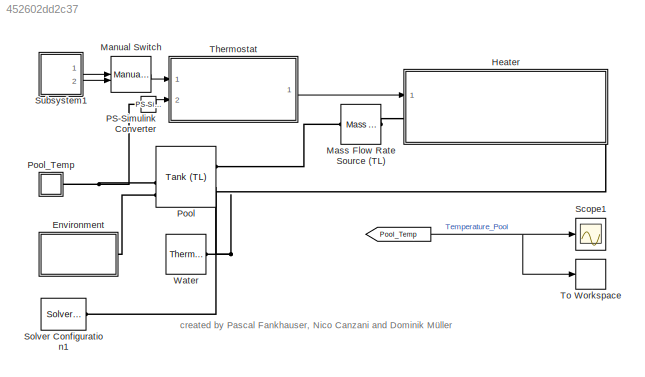
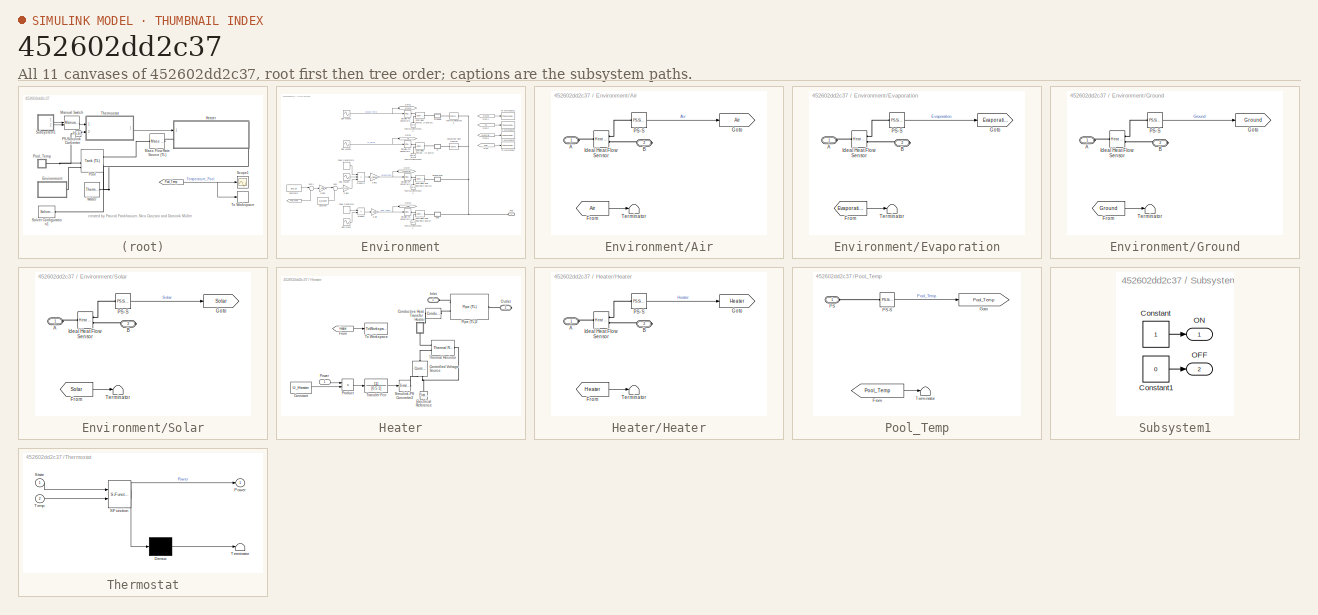
[diagram: thumbnail index - all 11 canvases of the model, root first then tree order]
MODEL slx_452602dd2c37
KIND model
CONFIG AbsTol = 1e-3
CONFIG EnableMultiTasking = on
CONFIG FixedStep = auto
CONFIG MaxStep = 100
CONFIG MinStep = auto
CONFIG RelTol = 1e-3
CONFIG SampleTimeConstraint = Unconstrained
CONFIG Solver = VariableStepAuto
CONFIG SolverName = VariableStepAuto
CONFIG StartTime = 0.0
CONFIG StopTime = 2592000
BLOCK [From]  
  GotoTag = Pool_Temp
  TagVisibility = global
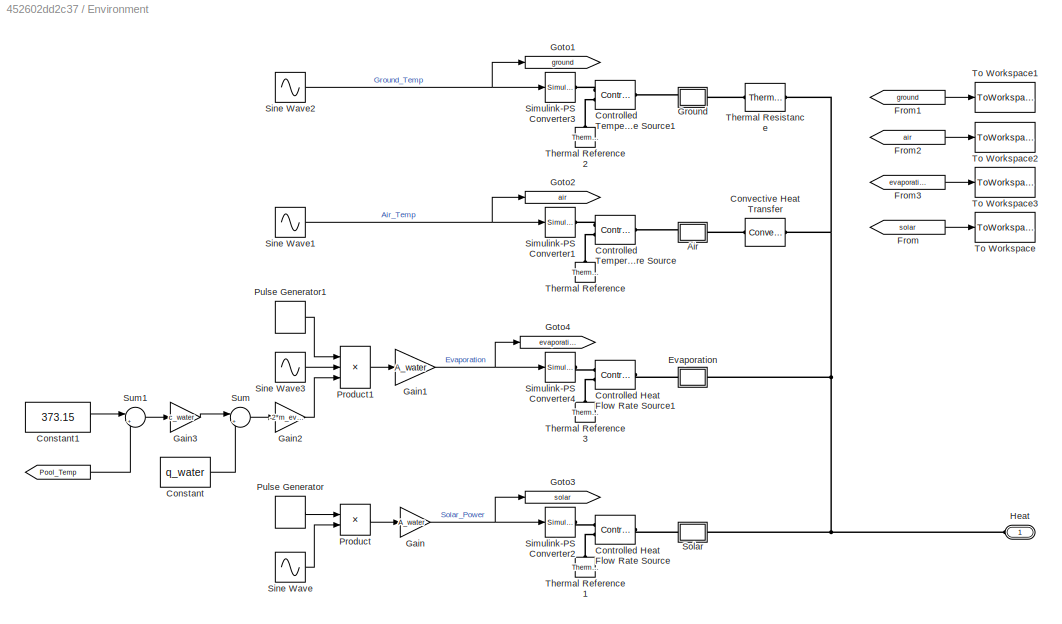
BLOCK [SubSystem] Environment
  Ports = [0, 0, 0, 0, 0, 1]
  RequestExecContextInheritance = off
BLOCK [From] Environment/ 
  GotoTag = Pool_Temp
  TagVisibility = global
BLOCK [SubSystem] Environment/Air
  AttributesFormatString = [J/s]
  CopyFcn = if strcmp(get_param(gcb, 'LinkStatus'),'implicit') == 0;\nset_param(gcb,'LinkStatus','inactive');                \nset_param(gcb,'LinkStatus','none');    \nend                \nset_param([gcb '/Goto'],'GotoTag', [get(gcbh,'name')]);\nset_param([gcb '/From'],'GotoTag', [get(gcbh,'name')]);\nh = get_param([gcb, '/PS-S'], 'PortHandles');\nset(h.Outport(1), 'SignalNameFromLabel', [get(gcbh,'name')])\nclear h;  <repeated x6 — deduplicated; at blocks: Air, Evaporation, Ground, Solar, Heater, Pool_Temp>
  Description = Simscape Probe
  InitFcn = unit=get_param([gcb '/PS-S'],'Unit');                                              \nset_param(gcb, 'AttributesFormatString', strcat('[', unit,']'));
  NameChangeFcn = set_param([gcb '/Goto'],'GotoTag', [get(gcbh,'name')]);\nset_param([gcb '/From'],'GotoTag', [get(gcbh,'name')]);\nh = get_param([gcb, '/PS-S'], 'PortHandles');\nset(h.Outport(1), 'SignalNameFromLabel', [get(gcbh,'name')])\nclear h;  <repeated x6 — deduplicated; at blocks: Air, Evaporation, Ground, Solar, Heater, Pool_Temp>
  OpenFcn = if exist('logsout', 'var')\n  vname = get(gcbh,'name');                 \n  fHandle = findall(0,'Tag',vname);                         \n  if isempty(fHandle)                                        \n  figure('Tag',vname);                                       \n  end;                                                       \n  figure(findobj('Tag',vname));                             \n  plot(logsout.getEl...<+213ch>  <repeated x5 — deduplicated; at blocks: Air, Evaporation, Ground, Solar, Heater>
  Ports = [0, 0, 0, 0, 0, 1, 1]
  RequestExecContextInheritance = off
BLOCK [PMIOPort] Environment/Air/A
  Side = Left
BLOCK [PMIOPort] Environment/Air/B
  Port = 2
  Side = Right
BLOCK [From] Environment/Air/From
  GotoTag = Air
  TagVisibility = global
BLOCK [Goto] Environment/Air/Goto
  GotoTag = Air
  TagVisibility = global
BLOCK [Reference] Environment/Air/Ideal Heat Flow Sensor  REF=fl_lib/Thermal/Thermal Sensors/Heat Flow Rate
Sensor
  Ports = [0, 0, 0, 0, 0, 1, 2]
  SourceBlock = fl_lib/Thermal/Thermal Sensors/Heat Flow Rate\nSensor
  SourceProductBaseCode = SS
  SourceProductName = Simscape
  SourceType = Heat Flow Rate\nSensor
BLOCK [Reference] Environment/Air/PS-S  REF=nesl_utility/PS-Simulink
Converter
  Ports = [0, 1, 0, 0, 0, 1]
  SourceBlock = nesl_utility/PS-Simulink\nConverter
  SourceProductBaseCode = SS
  SourceProductName = Simscape
  SourceType = PS-Simulink\nConverter
BLOCK [Terminator] Environment/Air/Terminator
BLOCK [Constant] Environment/Constant
  Value = q_water
BLOCK [Constant] Environment/Constant1
  Value = 373.15
BLOCK [Reference] Environment/Controlled Heat Flow Rate Source  REF=fl_lib/Thermal/Thermal Sources/Controlled Heat Flow
Rate Source
  Ports = [0, 0, 0, 0, 0, 1, 2]
  SourceBlock = fl_lib/Thermal/Thermal Sources/Controlled Heat Flow\nRate Source
  SourceProductBaseCode = SS
  SourceProductName = Simscape
  SourceType = Controlled Heat Flow\nRate Source
BLOCK [Reference] Environment/Controlled Heat Flow Rate Source1  REF=fl_lib/Thermal/Thermal Sources/Controlled Heat Flow
Rate Source
  Ports = [0, 0, 0, 0, 0, 1, 2]
  SourceBlock = fl_lib/Thermal/Thermal Sources/Controlled Heat Flow\nRate Source
  SourceProductBaseCode = SS
  SourceProductName = Simscape
  SourceType = Controlled Heat Flow\nRate Source
BLOCK [Reference] Environment/Controlled Temperature Source  REF=fl_lib/Thermal/Thermal Sources/Controlled
Temperature Source
  Ports = [0, 0, 0, 0, 0, 1, 2]
  SourceBlock = fl_lib/Thermal/Thermal Sources/Controlled\nTemperature Source
  SourceProductBaseCode = SS
  SourceProductName = Simscape
  SourceType = Controlled\nTemperature Source
BLOCK [Reference] Environment/Controlled Temperature Source1  REF=fl_lib/Thermal/Thermal Sources/Controlled
Temperature Source
  Ports = [0, 0, 0, 0, 0, 1, 2]
  SourceBlock = fl_lib/Thermal/Thermal Sources/Controlled\nTemperature Source
  SourceProductBaseCode = SS
  SourceProductName = Simscape
  SourceType = Controlled\nTemperature Source
BLOCK [Reference] Environment/Convective Heat Transfer  REF=fl_lib/Thermal/Thermal Elements/Convective Heat
Transfer
  Ports = [0, 0, 0, 0, 0, 1, 1]
  SourceBlock = fl_lib/Thermal/Thermal Elements/Convective Heat\nTransfer
  SourceProductBaseCode = SS
  SourceProductName = Simscape
  SourceType = Convective Heat\nTransfer
BLOCK [SubSystem] Environment/Evaporation
  AttributesFormatString = [J/s]
  Description = Simscape Probe
  InitFcn = unit=get_param([gcb '/PS-S'],'Unit');                                              \nset_param(gcb, 'AttributesFormatString', strcat('[', unit,']'));
  Ports = [0, 0, 0, 0, 0, 1, 1]
  RequestExecContextInheritance = off
BLOCK [PMIOPort] Environment/Evaporation/A
  Side = Left
BLOCK [PMIOPort] Environment/Evaporation/B
  Port = 2
  Side = Right
BLOCK [From] Environment/Evaporation/From
  GotoTag = Evaporation
  TagVisibility = global
BLOCK [Goto] Environment/Evaporation/Goto
  GotoTag = Evaporation
  TagVisibility = global
BLOCK [Reference] Environment/Evaporation/Ideal Heat Flow Sensor  REF=fl_lib/Thermal/Thermal Sensors/Heat Flow Rate
Sensor
  Ports = [0, 0, 0, 0, 0, 1, 2]
  SourceBlock = fl_lib/Thermal/Thermal Sensors/Heat Flow Rate\nSensor
  SourceProductBaseCode = SS
  SourceProductName = Simscape
  SourceType = Heat Flow Rate\nSensor
BLOCK [Reference] Environment/Evaporation/PS-S  REF=nesl_utility/PS-Simulink
Converter
  Ports = [0, 1, 0, 0, 0, 1]
  SourceBlock = nesl_utility/PS-Simulink\nConverter
  SourceProductBaseCode = SS
  SourceProductName = Simscape
  SourceType = PS-Simulink\nConverter
BLOCK [Terminator] Environment/Evaporation/Terminator
BLOCK [From] Environment/From
  GotoTag = solar
  TagVisibility = global
BLOCK [From] Environment/From1
  GotoTag = ground
  TagVisibility = global
BLOCK [From] Environment/From2
  GotoTag = air
  TagVisibility = global
BLOCK [From] Environment/From3
  GotoTag = evaporation
  TagVisibility = global
BLOCK [Gain] Environment/Gain
  Gain = A_water
  OutDataTypeStr = Inherit: Inherit via internal rule
  ParamDataTypeStr = Inherit: Inherit via internal rule
  SaturateOnIntegerOverflow = off
BLOCK [Gain] Environment/Gain1
  Gain = A_water
  OutDataTypeStr = Inherit: Inherit via internal rule
  ParamDataTypeStr = Inherit: Inherit via internal rule
  SaturateOnIntegerOverflow = off
BLOCK [Gain] Environment/Gain2
  Gain = -2*m_ev/(24*3600)
  OutDataTypeStr = Inherit: Inherit via internal rule
  ParamDataTypeStr = Inherit: Inherit via internal rule
  SaturateOnIntegerOverflow = off
BLOCK [Gain] Environment/Gain3
  Gain = c_water
  OutDataTypeStr = Inherit: Inherit via internal rule
  ParamDataTypeStr = Inherit: Inherit via internal rule
  SaturateOnIntegerOverflow = off
BLOCK [Goto] Environment/Goto1
  GotoTag = ground
  TagVisibility = global
BLOCK [Goto] Environment/Goto2
  GotoTag = air
  TagVisibility = global
BLOCK [Goto] Environment/Goto3
  GotoTag = solar
  TagVisibility = global
BLOCK [Goto] Environment/Goto4
  GotoTag = evaporation
  TagVisibility = global
BLOCK [SubSystem] Environment/Ground
  AttributesFormatString = [J/s]
  Description = Simscape Probe
  InitFcn = unit=get_param([gcb '/PS-S'],'Unit');                                              \nset_param(gcb, 'AttributesFormatString', strcat('[', unit,']'));
  Ports = [0, 0, 0, 0, 0, 1, 1]
  RequestExecContextInheritance = off
BLOCK [PMIOPort] Environment/Ground/A
  Side = Left
BLOCK [PMIOPort] Environment/Ground/B
  Port = 2
  Side = Right
BLOCK [From] Environment/Ground/From
  GotoTag = Ground
  TagVisibility = global
BLOCK [Goto] Environment/Ground/Goto
  GotoTag = Ground
  TagVisibility = global
BLOCK [Reference] Environment/Ground/Ideal Heat Flow Sensor  REF=fl_lib/Thermal/Thermal Sensors/Heat Flow Rate
Sensor
  Ports = [0, 0, 0, 0, 0, 1, 2]
  SourceBlock = fl_lib/Thermal/Thermal Sensors/Heat Flow Rate\nSensor
  SourceProductBaseCode = SS
  SourceProductName = Simscape
  SourceType = Heat Flow Rate\nSensor
BLOCK [Reference] Environment/Ground/PS-S  REF=nesl_utility/PS-Simulink
Converter
  Ports = [0, 1, 0, 0, 0, 1]
  SourceBlock = nesl_utility/PS-Simulink\nConverter
  SourceProductBaseCode = SS
  SourceProductName = Simscape
  SourceType = PS-Simulink\nConverter
BLOCK [Terminator] Environment/Ground/Terminator
BLOCK [PMIOPort] Environment/Heat
  Side = Left
BLOCK [Product] Environment/Product
  InputSameDT = off
  OutDataTypeStr = Inherit: Inherit via internal rule
  Ports = [2, 1]
  RndMeth = Floor
  SaturateOnIntegerOverflow = off
BLOCK [Product] Environment/Product1
  InputSameDT = off
  Inputs = 3
  OutDataTypeStr = Inherit: Inherit via internal rule
  Ports = [3, 1]
  RndMeth = Floor
  SaturateOnIntegerOverflow = off
BLOCK [DiscretePulseGenerator] Environment/Pulse Generator
  Period = 24*3600
  Ports = [0, 1]
  PulseType = Time based
  PulseWidth = 50
BLOCK [DiscretePulseGenerator] Environment/Pulse Generator1
  Period = 60*60*24
  Ports = [0, 1]
  PulseType = Time based
  PulseWidth = 50
BLOCK [Reference] Environment/Simulink-PS Converter1  REF=nesl_utility/Simulink-PS
Converter
  Ports = [1, 0, 0, 0, 0, 0, 1]
  SourceBlock = nesl_utility/Simulink-PS\nConverter
  SourceProductBaseCode = SS
  SourceProductName = Simscape
  SourceType = Simulink-PS\nConverter
BLOCK [Reference] Environment/Simulink-PS Converter2  REF=nesl_utility/Simulink-PS
Converter
  Ports = [1, 0, 0, 0, 0, 0, 1]
  SourceBlock = nesl_utility/Simulink-PS\nConverter
  SourceProductBaseCode = SS
  SourceProductName = Simscape
  SourceType = Simulink-PS\nConverter
BLOCK [Reference] Environment/Simulink-PS Converter3  REF=nesl_utility/Simulink-PS
Converter
  Ports = [1, 0, 0, 0, 0, 0, 1]
  SourceBlock = nesl_utility/Simulink-PS\nConverter
  SourceProductBaseCode = SS
  SourceProductName = Simscape
  SourceType = Simulink-PS\nConverter
BLOCK [Reference] Environment/Simulink-PS Converter4  REF=nesl_utility/Simulink-PS
Converter
  Ports = [1, 0, 0, 0, 0, 0, 1]
  SourceBlock = nesl_utility/Simulink-PS\nConverter
  SourceProductBaseCode = SS
  SourceProductName = Simscape
  SourceType = Simulink-PS\nConverter
BLOCK [Sin] Environment/Sine Wave
  Amplitude = P_Smax/2
  Bias = P_Smax/2
  Frequency = 2*pi/(12*3600)
  Phase = -pi/2
  Ports = [0, 1]
  SampleTime = 0
BLOCK [Sin] Environment/Sine Wave1
  Amplitude = (T_Amax - T_Amin)/2
  Bias = (T_Amax + T_Amin)/2
  Frequency = 2*pi/(24*3600)
  Phase = -pi/2
  Ports = [0, 1]
  SampleTime = 0
BLOCK [Sin] Environment/Sine Wave2
  Amplitude = (T_Gmax - T_Gmin)/2
  Bias = (T_Gmax + T_Gmin)/2
  Frequency = 2*pi/(24*3600)
  Phase = -pi/2 - P_air_ground
  Ports = [0, 1]
  SampleTime = 0
BLOCK [Sin] Environment/Sine Wave3
  Bias = 1
  Frequency = 2*pi/(60*60*12)
  Phase = -pi/2
  Ports = [0, 1]
  SampleTime = 0
BLOCK [SubSystem] Environment/Solar
  AttributesFormatString = [J/s]
  Description = Simscape Probe
  InitFcn = unit=get_param([gcb '/PS-S'],'Unit');                                              \nset_param(gcb, 'AttributesFormatString', strcat('[', unit,']'));
  Ports = [0, 0, 0, 0, 0, 1, 1]
  RequestExecContextInheritance = off
BLOCK [PMIOPort] Environment/Solar/A
  Side = Left
BLOCK [PMIOPort] Environment/Solar/B
  Port = 2
  Side = Right
BLOCK [From] Environment/Solar/From
  GotoTag = Solar
  TagVisibility = global
BLOCK [Goto] Environment/Solar/Goto
  GotoTag = Solar
  TagVisibility = global
BLOCK [Reference] Environment/Solar/Ideal Heat Flow Sensor  REF=fl_lib/Thermal/Thermal Sensors/Heat Flow Rate
Sensor
  Ports = [0, 0, 0, 0, 0, 1, 2]
  SourceBlock = fl_lib/Thermal/Thermal Sensors/Heat Flow Rate\nSensor
  SourceProductBaseCode = SS
  SourceProductName = Simscape
  SourceType = Heat Flow Rate\nSensor
BLOCK [Reference] Environment/Solar/PS-S  REF=nesl_utility/PS-Simulink
Converter
  Ports = [0, 1, 0, 0, 0, 1]
  SourceBlock = nesl_utility/PS-Simulink\nConverter
  SourceProductBaseCode = SS
  SourceProductName = Simscape
  SourceType = PS-Simulink\nConverter
BLOCK [Terminator] Environment/Solar/Terminator
BLOCK [Sum] Environment/Sum
  IconShape = round
  InputSameDT = off
  Inputs = |++
  OutDataTypeStr = Inherit: Inherit via internal rule
  Ports = [2, 1]
  SaturateOnIntegerOverflow = off
BLOCK [Sum] Environment/Sum1
  IconShape = round
  InputSameDT = off
  Inputs = |+-
  OutDataTypeStr = Inherit: Inherit via internal rule
  Ports = [2, 1]
  SaturateOnIntegerOverflow = off
BLOCK [Reference] Environment/Thermal Reference  REF=fl_lib/Thermal/Thermal Elements/Thermal Reference
  Ports = [0, 0, 0, 0, 0, 1]
  SourceBlock = fl_lib/Thermal/Thermal Elements/Thermal Reference
  SourceProductBaseCode = SS
  SourceProductName = Simscape
  SourceType = Thermal Reference
BLOCK [Reference] Environment/Thermal Reference1  REF=fl_lib/Thermal/Thermal Elements/Thermal Reference
  Ports = [0, 0, 0, 0, 0, 1]
  SourceBlock = fl_lib/Thermal/Thermal Elements/Thermal Reference
  SourceProductBaseCode = SS
  SourceProductName = Simscape
  SourceType = Thermal Reference
BLOCK [Reference] Environment/Thermal Reference2  REF=fl_lib/Thermal/Thermal Elements/Thermal Reference
  Ports = [0, 0, 0, 0, 0, 1]
  SourceBlock = fl_lib/Thermal/Thermal Elements/Thermal Reference
  SourceProductBaseCode = SS
  SourceProductName = Simscape
  SourceType = Thermal Reference
BLOCK [Reference] Environment/Thermal Reference3  REF=fl_lib/Thermal/Thermal Elements/Thermal Reference
  Ports = [0, 0, 0, 0, 0, 1]
  SourceBlock = fl_lib/Thermal/Thermal Elements/Thermal Reference
  SourceProductBaseCode = SS
  SourceProductName = Simscape
  SourceType = Thermal Reference
BLOCK [Reference] Environment/Thermal Resistance  REF=fl_lib/Thermal/Thermal Elements/Thermal Resistance
  Ports = [0, 0, 0, 0, 0, 1, 1]
  SourceBlock = fl_lib/Thermal/Thermal Elements/Thermal Resistance
  SourceProductBaseCode = SS
  SourceProductName = Simscape
  SourceType = Thermal Resistance
BLOCK [ToWorkspace] Environment/To Workspace
  FixptAsFi = on
  MaxDataPoints = inf
  Ports = [1]
  SampleTime = -1
  Save2DSignal = 3-D array (concatenate along third dimension)
  SaveFormat = Timeseries
  VariableName = solar
BLOCK [ToWorkspace] Environment/To Workspace1
  FixptAsFi = on
  MaxDataPoints = inf
  Ports = [1]
  SampleTime = -1
  Save2DSignal = 3-D array (concatenate along third dimension)
  SaveFormat = Timeseries
  VariableName = gnd
BLOCK [ToWorkspace] Environment/To Workspace2
  FixptAsFi = on
  MaxDataPoints = inf
  Ports = [1]
  SampleTime = -1
  Save2DSignal = 3-D array (concatenate along third dimension)
  SaveFormat = Timeseries
  VariableName = air
BLOCK [ToWorkspace] Environment/To Workspace3
  FixptAsFi = on
  MaxDataPoints = inf
  Ports = [1]
  SampleTime = -1
  Save2DSignal = 3-D array (concatenate along third dimension)
  SaveFormat = Timeseries
  VariableName = evap
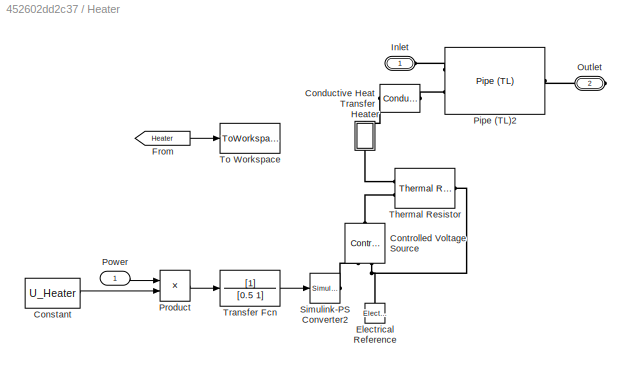
BLOCK [SubSystem] Heater
  Ports = [1, 0, 0, 0, 0, 1, 1]
  RequestExecContextInheritance = off
BLOCK [Reference] Heater/Conductive Heat Transfer  REF=fl_lib/Thermal/Thermal Elements/Conductive Heat
Transfer
  Ports = [0, 0, 0, 0, 0, 1, 1]
  SourceBlock = fl_lib/Thermal/Thermal Elements/Conductive Heat\nTransfer
  SourceProductBaseCode = SS
  SourceProductName = Simscape
  SourceType = Conductive Heat\nTransfer
BLOCK [Constant] Heater/Constant
  Value = U_Heater
BLOCK [Reference] Heater/Controlled Voltage Source  REF=fl_lib/Electrical/Electrical Sources/Controlled Voltage
Source
  Ports = [0, 0, 0, 0, 0, 1, 2]
  SourceBlock = fl_lib/Electrical/Electrical Sources/Controlled Voltage\nSource
  SourceProductBaseCode = SS
  SourceProductName = Simscape
  SourceType = Controlled Voltage\nSource
BLOCK [Reference] Heater/Electrical Reference  REF=fl_lib/Electrical/Electrical Elements/Electrical Reference
  Ports = [0, 0, 0, 0, 0, 1]
  SourceBlock = fl_lib/Electrical/Electrical Elements/Electrical Reference
  SourceProductBaseCode = SS
  SourceProductName = Simscape
  SourceType = Electrical Reference
BLOCK [From] Heater/From
  GotoTag = Heater
  TagVisibility = global
BLOCK [SubSystem] Heater/Heater
  AttributesFormatString = [J/s]
  Description = Simscape Probe
  InitFcn = unit=get_param([gcb '/PS-S'],'Unit');                                              \nset_param(gcb, 'AttributesFormatString', strcat('[', unit,']'));
  Ports = [0, 0, 0, 0, 0, 1, 1]
  RequestExecContextInheritance = off
BLOCK [PMIOPort] Heater/Heater/A
  Side = Left
BLOCK [PMIOPort] Heater/Heater/B
  Port = 2
  Side = Right
BLOCK [From] Heater/Heater/From
  GotoTag = Heater
  TagVisibility = global
BLOCK [Goto] Heater/Heater/Goto
  GotoTag = Heater
  TagVisibility = global
BLOCK [Reference] Heater/Heater/Ideal Heat Flow Sensor  REF=fl_lib/Thermal/Thermal Sensors/Heat Flow Rate
Sensor
  Ports = [0, 0, 0, 0, 0, 1, 2]
  SourceBlock = fl_lib/Thermal/Thermal Sensors/Heat Flow Rate\nSensor
  SourceProductBaseCode = SS
  SourceProductName = Simscape
  SourceType = Heat Flow Rate\nSensor
BLOCK [Reference] Heater/Heater/PS-S  REF=nesl_utility/PS-Simulink
Converter
  Ports = [0, 1, 0, 0, 0, 1]
  SourceBlock = nesl_utility/PS-Simulink\nConverter
  SourceProductBaseCode = SS
  SourceProductName = Simscape
  SourceType = PS-Simulink\nConverter
BLOCK [Terminator] Heater/Heater/Terminator
BLOCK [PMIOPort] Heater/Inlet
  Side = Left
BLOCK [PMIOPort] Heater/Outlet
  Port = 2
  Side = Right
BLOCK [Reference] Heater/Pipe (TL)2  REF=fl_lib/Thermal Liquid/Elements/Pipe (TL)
  Ports = [0, 0, 0, 0, 0, 2, 1]
  SourceBlock = fl_lib/Thermal Liquid/Elements/Pipe (TL)
  SourceProductBaseCode = SS
  SourceProductName = Simscape
  SourceType = Pipe (TL)
BLOCK [Inport] Heater/Power
  IconDisplay = Port number
BLOCK [Product] Heater/Product
  InputSameDT = off
  OutDataTypeStr = Inherit: Inherit via internal rule
  Ports = [2, 1]
  RndMeth = Floor
  SaturateOnIntegerOverflow = off
BLOCK [Reference] Heater/Simulink-PS Converter2  REF=nesl_utility/Simulink-PS
Converter
  Ports = [1, 0, 0, 0, 0, 0, 1]
  SourceBlock = nesl_utility/Simulink-PS\nConverter
  SourceProductBaseCode = SS
  SourceProductName = Simscape
  SourceType = Simulink-PS\nConverter
BLOCK [Reference] Heater/Thermal Resistor  REF=fl_lib/Electrical/Electrical Elements/Thermal Resistor
  Ports = [0, 0, 0, 0, 0, 2, 1]
  SourceBlock = fl_lib/Electrical/Electrical Elements/Thermal Resistor
  SourceProductBaseCode = SS
  SourceProductName = Simscape
  SourceType = Thermal Resistor
BLOCK [ToWorkspace] Heater/To Workspace
  FixptAsFi = on
  MaxDataPoints = inf
  Ports = [1]
  SampleTime = -1
  Save2DSignal = 3-D array (concatenate along third dimension)
  SaveFormat = Timeseries
  VariableName = heater
BLOCK [TransferFcn] Heater/Transfer Fcn
  Denominator = [0.5 1]
BLOCK [ManualSwitch] Manual Switch
BLOCK [Reference] Mass Flow Rate Source (TL)  REF=fl_lib/Thermal Liquid/Sources/Mass Flow Rate
Source (TL)
  Ports = [0, 0, 0, 0, 0, 1, 1]
  SourceBlock = fl_lib/Thermal Liquid/Sources/Mass Flow Rate\nSource (TL)
  SourceProductBaseCode = SS
  SourceProductName = Simscape
  SourceType = Mass Flow Rate\nSource (TL)
BLOCK [Reference] PS-Simulink Converter  REF=nesl_utility/PS-Simulink
Converter
  Ports = [0, 1, 0, 0, 0, 1]
  SourceBlock = nesl_utility/PS-Simulink\nConverter
  SourceProductBaseCode = SS
  SourceProductName = Simscape
  SourceType = PS-Simulink\nConverter
BLOCK [Reference] Pool  REF=SimscapeFluids_lib/Thermal Liquid/Tanks & Accumulators/Tank (TL)
  Ports = [0, 0, 0, 0, 0, 2, 4]
  SourceBlock = SimscapeFluids_lib/Thermal Liquid/Tanks & Accumulators/Tank (TL)
  SourceProductBaseCode = SH
  SourceProductName = Simscape Fluids
  SourceType = Tank (TL)
BLOCK [SubSystem] Pool_Temp
  AttributesFormatString = [1]
  Description = Simscape Probe
  InitFcn = unit=get_param([gcb '/PS-S'],'Unit');                                              \nset_param(gcb, 'AttributesFormatString', strcat('[', unit,']'));
  OpenFcn = if exist('logsout', 'var')\n  vname = get(gcbh,'name');                 \n  fHandle = findall(0,'Tag',vname);                         \n  if isempty(fHandle)                                        \n  figure('Tag',vname);                                       \n  end;                                                       \n  figure(findobj('Tag',vname));                             \n  plot(logsout.getEl...<+219ch>
  Ports = [0, 0, 0, 0, 0, 1]
  RequestExecContextInheritance = off
BLOCK [From] Pool_Temp/From
  GotoTag = Pool_Temp
  TagVisibility = global
BLOCK [Goto] Pool_Temp/Goto
  GotoTag = Pool_Temp
  TagVisibility = global
BLOCK [PMIOPort] Pool_Temp/PS
  Side = Left
BLOCK [Reference] Pool_Temp/PS-S  REF=nesl_utility/PS-Simulink
Converter
  Ports = [0, 1, 0, 0, 0, 1]
  SourceBlock = nesl_utility/PS-Simulink\nConverter
  SourceProductBaseCode = SS
  SourceProductName = Simscape
  SourceType = PS-Simulink\nConverter
BLOCK [Terminator] Pool_Temp/Terminator
BLOCK [Scope] Scope1
  Floating = off
  NumInputPorts = 1
  Ports = [1]
  ScopeSpecificationString = Simulink.scopes.TimeScopeBlockCfg('CurrentConfiguration', extmgr.ConfigurationSet(extmgr.Configuration('Core','General UI',true,'FigureColor',[1 1 1]),extmgr.Configuration('Core','Source UI',true),extmgr.Configuration('Sources','WiredSimulink',true,'DataLoggingLimitDataPoints',true,'DataLoggingSaveFormat','Array','DataLoggingDecimation','1','DataLoggingDecimateData',true,'DataLoggingVariableName',...<+2206ch>
BLOCK [Reference] Solver Configuration1  REF=nesl_utility/Solver
Configuration
  Ports = [0, 0, 0, 0, 0, 0, 1]
  SourceBlock = nesl_utility/Solver\nConfiguration
  SourceProductBaseCode = SS
  SourceProductName = Simscape
  SourceType = Solver\nConfiguration
BLOCK [SubSystem] Subsystem1
  Ports = [0, 2]
  RequestExecContextInheritance = off
BLOCK [Constant] Subsystem1/Constant
BLOCK [Constant] Subsystem1/Constant1
  Value = 0
BLOCK [Outport] Subsystem1/OFF
  IconDisplay = Port number
  Port = 2
BLOCK [Outport] Subsystem1/ON
  IconDisplay = Port number
BLOCK [SubSystem] Thermostat
  ErrorFcn = Stateflow.Translate.translate
  PermitHierarchicalResolution = ExplicitOnly
  Ports = [2, 1]
  RequestExecContextInheritance = off
  SFBlockType = MATLAB Function
  TreatAsAtomicUnit = on
BLOCK [Demux] Thermostat/ Demux 
  Outputs = 1
  Ports = [1, 1]
BLOCK [S-Function] Thermostat/ SFunction 
  EnableBusSupport = on
  FunctionName = sf_sfun
  Parameters = max_temp,min_temp
  PortCounts = [2 2]
  Ports = [2, 2]
  SFcnIsStateOwnerBlock = off
  SFunctionDeploymentMode = off
  Tag = Stateflow S-Function SwimmingPoolSimulationModel 2
BLOCK [Terminator] Thermostat/ Terminator 
BLOCK [Outport] Thermostat/Power
  IconDisplay = Port number
BLOCK [Inport] Thermostat/State
  IconDisplay = Port number
BLOCK [Inport] Thermostat/Temp
  IconDisplay = Port number
  Port = 2
BLOCK [ToWorkspace] To Workspace
  FixptAsFi = on
  MaxDataPoints = inf
  Ports = [1]
  SampleTime = -1
  Save2DSignal = 3-D array (concatenate along third dimension)
  SaveFormat = Timeseries
  VariableName = sim
BLOCK [Reference] Water  REF=SimscapeFluids_lib/Thermal Liquid/Utilities/Thermal Liquid
Properties (TL)
  Ports = [0, 0, 0, 0, 0, 0, 1]
  SourceBlock = SimscapeFluids_lib/Thermal Liquid/Utilities/Thermal Liquid\nProperties (TL)
  SourceProductBaseCode = SH
  SourceProductName = Simscape Fluids
  SourceType = Thermal Liquid\nProperties (TL)
ANNOTATION (root): created by Pascal Fankhauser, Nico Canzani and Dominik Müller
NET  :1 -> Scope1:1, To Workspace:1
LINE Environment/ :1 -> Environment/Sum1:2
LINE Environment/Constant1:1 -> Environment/Sum1:1
LINE Environment/Constant:1 -> Environment/Sum:2
LINE Environment/From1:1 -> Environment/To Workspace1:1
LINE Environment/From2:1 -> Environment/To Workspace2:1
LINE Environment/From3:1 -> Environment/To Workspace3:1
LINE Environment/From:1 -> Environment/To Workspace:1
NET Environment/Gain1:1 -> Environment/Goto4:1, Environment/Simulink-PS Converter4:1
LINE Environment/Gain2:1 -> Environment/Product1:3
LINE Environment/Gain3:1 -> Environment/Sum:1
NET Environment/Gain:1 -> Environment/Goto3:1, Environment/Simulink-PS Converter2:1
LINE Environment/Product1:1 -> Environment/Gain1:1
LINE Environment/Product:1 -> Environment/Gain:1
LINE Environment/Pulse Generator1:1 -> Environment/Product1:1
LINE Environment/Pulse Generator:1 -> Environment/Product:1
NET Environment/Sine Wave1:1 -> Environment/Goto2:1, Environment/Simulink-PS Converter1:1
NET Environment/Sine Wave2:1 -> Environment/Goto1:1, Environment/Simulink-PS Converter3:1
LINE Environment/Sine Wave3:1 -> Environment/Product1:2
LINE Environment/Sine Wave:1 -> Environment/Product:2
LINE Environment/Sum1:1 -> Environment/Gain3:1
LINE Environment/Sum:1 -> Environment/Gain2:1
LINE Heater/Constant:1 -> Heater/Product:2
LINE Heater/From:1 -> Heater/To Workspace:1
LINE Heater/Power:1 -> Heater/Product:1
LINE Heater/Product:1 -> Heater/Transfer Fcn:1
LINE Heater/Transfer Fcn:1 -> Heater/Simulink-PS Converter2:1
LINE Manual Switch:1 -> Thermostat:1
LINE PS-Simulink Converter:1 -> Thermostat:2
LINE Subsystem1/Constant1:1 -> Subsystem1/OFF:1
LINE Subsystem1/Constant:1 -> Subsystem1/ON:1
LINE Subsystem1:1 -> Manual Switch:1
LINE Subsystem1:2 -> Manual Switch:2
LINE Thermostat:1 -> Heater:1
PLINE Environment/Air:LConn1 -- Environment/Controlled Temperature Source:LConn1
PLINE Environment/Air:RConn1 -- Environment/Convective Heat Transfer:RConn1
PLINE Environment/Controlled Heat Flow Rate Source1:LConn1 -- Environment/Evaporation:LConn1
PLINE Environment/Controlled Heat Flow Rate Source1:RConn1 -- Environment/Simulink-PS Converter4:RConn1
PLINE Environment/Controlled Heat Flow Rate Source1:RConn2 -- Environment/Thermal Reference3:LConn1
PLINE Environment/Controlled Heat Flow Rate Source:LConn1 -- Environment/Solar:LConn1
PLINE Environment/Controlled Heat Flow Rate Source:RConn1 -- Environment/Simulink-PS Converter2:RConn1
PLINE Environment/Controlled Heat Flow Rate Source:RConn2 -- Environment/Thermal Reference1:LConn1
PLINE Environment/Controlled Temperature Source1:LConn1 -- Environment/Ground:LConn1
PLINE Environment/Controlled Temperature Source1:RConn1 -- Environment/Simulink-PS Converter3:RConn1
PLINE Environment/Controlled Temperature Source1:RConn2 -- Environment/Thermal Reference2:LConn1
PLINE Environment/Controlled Temperature Source:RConn1 -- Environment/Simulink-PS Converter1:RConn1
PLINE Environment/Controlled Temperature Source:RConn2 -- Environment/Thermal Reference:LConn1
PNET net1: Environment/Convective Heat Transfer:LConn1 -- Environment/Evaporation:RConn1 -- Environment/Heat:RConn1 -- Environment/Solar:RConn1 -- Environment/Thermal Resistance:RConn1
PLINE Environment/Ground:RConn1 -- Environment/Thermal Resistance:LConn1
PLINE Environment:LConn1 -- Pool:RConn4
PLINE Heater/Conductive Heat Transfer:LConn1 -- Heater/Heater:RConn1
PLINE Heater/Conductive Heat Transfer:RConn1 -- Heater/Pipe (TL)2:LConn2
PLINE Heater/Controlled Voltage Source:LConn1 -- Heater/Thermal Resistor:LConn2
PLINE Heater/Controlled Voltage Source:RConn1 -- Heater/Simulink-PS Converter2:RConn1
PNET net2: Heater/Controlled Voltage Source:RConn2 -- Heater/Electrical Reference:LConn1 -- Heater/Thermal Resistor:RConn1
PLINE Heater/Heater:LConn1 -- Heater/Thermal Resistor:LConn1
PLINE Heater/Inlet:RConn1 -- Heater/Pipe (TL)2:LConn1
PLINE Heater/Outlet:RConn1 -- Heater/Pipe (TL)2:RConn1
PLINE Heater:LConn1 -- Mass Flow Rate Source (TL):RConn1
PNET net3: Heater:RConn1 -- Pool:LConn2 -- Solver Configuration1:RConn1 -- Water:RConn1
PLINE Mass Flow Rate Source (TL):LConn1 -- Pool:LConn1
PNET net4: PS-Simulink Converter:LConn1 -- Pool:RConn3 -- Pool_Temp:LConn1
note: NET lines group one-source signal fan-out (src -> all destinations, sorted); 1:1 wires keep LINE; PNET lines group multi-terminal physical nets as a canonical sorted terminal list (undirected conserving connections); 2-terminal nets keep the pairwise PLINE form
CHART Thermostat states=1 transitions=1
  STATE_LABEL 'eML_blk_kernel()'
  STATE_LABEL 'SCRIPT:\nfunction Power = Thermostat(State, Temp, min_temp, max_temp)\n    \n    persistent POWER\n    \n    if isempty(POWER)\n        POWER = false;\n    end\n    \n    if POWER && (Temp > max_temp || ~State)\n        POWER = false;\n    elseif ~POWER && Temp < min_temp && State\n        POWER = true;\n    end\n    \n    Power = POWER;\n\nend\n'
